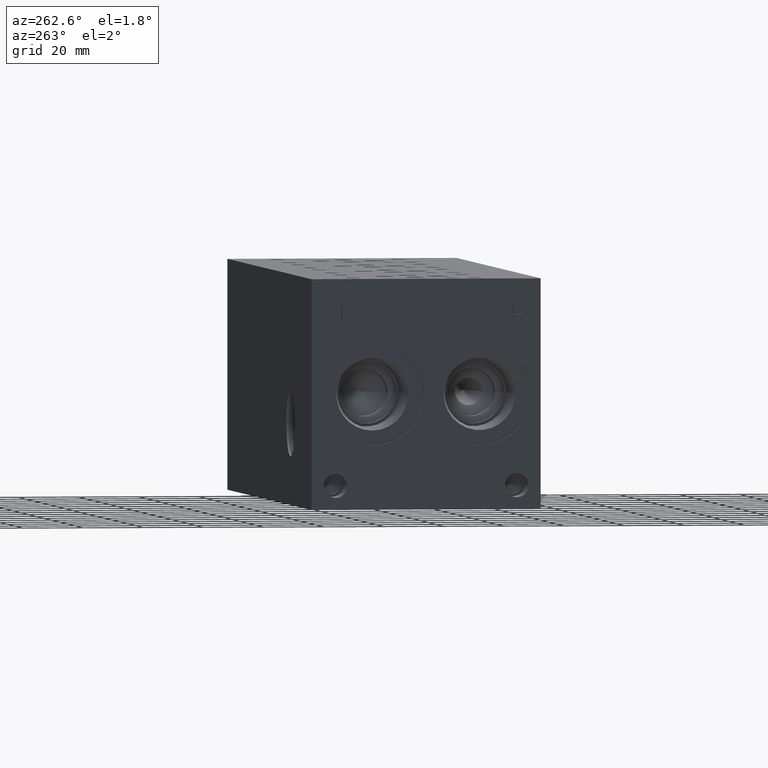
[diagram: clean part render]
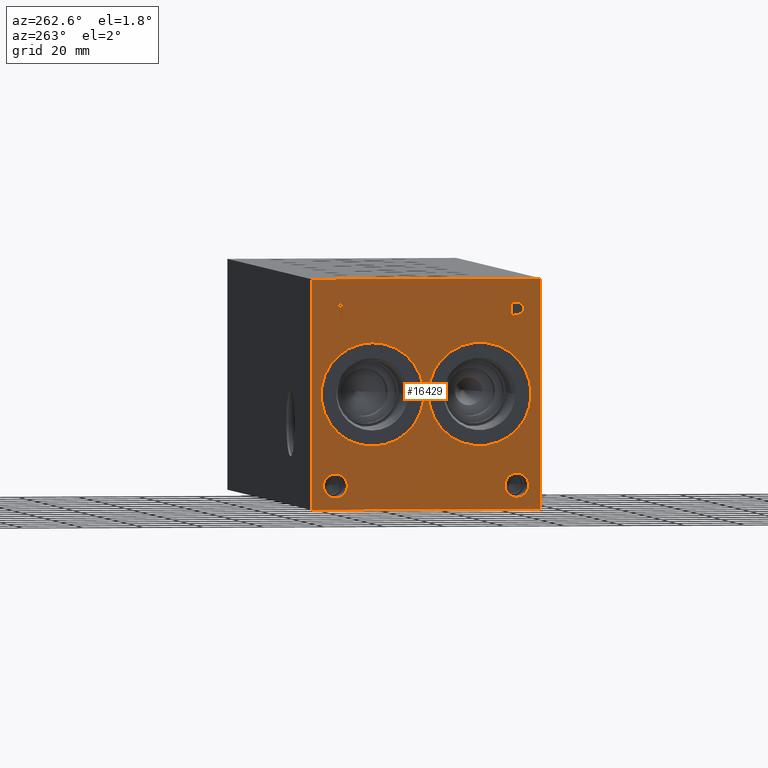
[diagram: same view with one face highlighted and labeled with its STEP entity id]
A machine part, auxiliary view. The second image highlights one B-rep face of the part: STEP entity #16429.
In plain terms, the highlighted planar face has unit normal (-1, 0, 0).
Its self-contained STEP definition (entity closure, byte-faithful):
#272=CIRCLE('',#17138,17.0688);
#273=CIRCLE('',#17139,17.0688);
#274=CIRCLE('',#17140,17.0688);
#275=CIRCLE('',#17141,17.0688);
#276=CIRCLE('',#17142,3.9624);
#277=CIRCLE('',#17143,3.9624);
#278=CIRCLE('',#17144,3.9624);
#279=CIRCLE('',#17145,3.9624);
#808=FACE_BOUND('',#3027,.T.);
#809=FACE_BOUND('',#3028,.T.);
#810=FACE_BOUND('',#3029,.T.);
#811=FACE_BOUND('',#3030,.T.);
#812=FACE_BOUND('',#3031,.T.);
#813=FACE_BOUND('',#3032,.T.);
#1300=B_SPLINE_CURVE_WITH_KNOTS('',2,(#27455,#27456,#27457,#27458),
 .UNSPECIFIED.,.F.,.F.,(3,1,3),(0.,1.,2.),.UNSPECIFIED.);
#1302=B_SPLINE_CURVE_WITH_KNOTS('',2,(#27476,#27477,#27478,#27479),
 .UNSPECIFIED.,.F.,.F.,(3,1,3),(0.,1.,2.),.UNSPECIFIED.);
#1304=B_SPLINE_CURVE_WITH_KNOTS('',2,(#27525,#27526,#27527,#27528),
 .UNSPECIFIED.,.F.,.F.,(3,1,3),(0.,1.,2.),.UNSPECIFIED.);
#1306=B_SPLINE_CURVE_WITH_KNOTS('',2,(#27543,#27544,#27545,#27546),
 .UNSPECIFIED.,.F.,.F.,(3,1,3),(0.,1.,2.),.UNSPECIFIED.);
#2087=FACE_OUTER_BOUND('',#3026,.T.);
#3026=EDGE_LOOP('',(#13336,#13337,#13338,#13339));
#3027=EDGE_LOOP('',(#13340,#13341));
#3028=EDGE_LOOP('',(#13342,#13343));
#3029=EDGE_LOOP('',(#13344,#13345));
#3030=EDGE_LOOP('',(#13346,#13347));
#3031=EDGE_LOOP('',(#13348,#13349,#13350,#13351,#13352,#13353,#13354,#13355));
#3032=EDGE_LOOP('',(#13356,#13357,#13358,#13359,#13360,#13361,#13362,#13363,
#13364));
#3732=LINE('',#24172,#5155);
#4561=LINE('',#27488,#5984);
#4564=LINE('',#27494,#5987);
#4567=LINE('',#27500,#5990);
#4570=LINE('',#27506,#5993);
#4573=LINE('',#27512,#5996);
#4577=LINE('',#27554,#6000);
#4578=LINE('',#27556,#6001);
#4579=LINE('',#27557,#6002);
#4580=LINE('',#27576,#6003);
#4581=LINE('',#27578,#6004);
#4582=LINE('',#27580,#6005);
#4583=LINE('',#27582,#6006);
#4584=LINE('',#27584,#6007);
#4585=LINE('',#27586,#6008);
#4586=LINE('',#27588,#6009);
#4587=LINE('',#27589,#6010);
#5155=VECTOR('',#18382,10.);
#5984=VECTOR('',#19835,10.);
#5987=VECTOR('',#19840,10.);
#5990=VECTOR('',#19845,10.);
#5993=VECTOR('',#19850,10.);
#5996=VECTOR('',#19855,10.);
#6000=VECTOR('',#19863,10.);
#6001=VECTOR('',#19864,10.);
#6002=VECTOR('',#19865,10.);
#6003=VECTOR('',#19882,10.);
#6004=VECTOR('',#19883,10.);
#6005=VECTOR('',#19884,10.);
#6006=VECTOR('',#19885,10.);
#6007=VECTOR('',#19886,10.);
#6008=VECTOR('',#19887,10.);
#6009=VECTOR('',#19888,10.);
#6010=VECTOR('',#19889,10.);
#6617=VERTEX_POINT('',#24165);
#6620=VERTEX_POINT('',#24170);
#7317=VERTEX_POINT('',#27453);
#7318=VERTEX_POINT('',#27454);
#7321=VERTEX_POINT('',#27475);
#7323=VERTEX_POINT('',#27487);
#7325=VERTEX_POINT('',#27493);
#7327=VERTEX_POINT('',#27499);
#7329=VERTEX_POINT('',#27505);
#7331=VERTEX_POINT('',#27511);
#7333=VERTEX_POINT('',#27524);
#7335=VERTEX_POINT('',#27553);
#7336=VERTEX_POINT('',#27555);
#7337=VERTEX_POINT('',#27558);
#7338=VERTEX_POINT('',#27559);
#7339=VERTEX_POINT('',#27562);
#7340=VERTEX_POINT('',#27563);
#7341=VERTEX_POINT('',#27566);
#7342=VERTEX_POINT('',#27567);
#7343=VERTEX_POINT('',#27570);
#7344=VERTEX_POINT('',#27571);
#7345=VERTEX_POINT('',#27574);
#7346=VERTEX_POINT('',#27575);
#7347=VERTEX_POINT('',#27577);
#7348=VERTEX_POINT('',#27579);
#7349=VERTEX_POINT('',#27581);
#7350=VERTEX_POINT('',#27583);
#7351=VERTEX_POINT('',#27585);
#7352=VERTEX_POINT('',#27587);
#8413=EDGE_CURVE('',#6617,#6620,#3732,.T.);
#9445=EDGE_CURVE('',#7317,#7318,#1300,.T.);
#9449=EDGE_CURVE('',#7321,#7317,#1302,.T.);
#9452=EDGE_CURVE('',#7323,#7321,#4561,.T.);
#9455=EDGE_CURVE('',#7325,#7323,#4564,.T.);
#9458=EDGE_CURVE('',#7327,#7325,#4567,.T.);
#9461=EDGE_CURVE('',#7329,#7327,#4570,.T.);
#9464=EDGE_CURVE('',#7331,#7329,#4573,.T.);
#9467=EDGE_CURVE('',#7333,#7331,#1304,.T.);
#9470=EDGE_CURVE('',#7318,#7333,#1306,.T.);
#9472=EDGE_CURVE('',#7335,#6617,#4577,.T.);
#9473=EDGE_CURVE('',#7336,#6620,#4578,.T.);
#9474=EDGE_CURVE('',#7335,#7336,#4579,.T.);
#9475=EDGE_CURVE('',#7337,#7338,#272,.T.);
#9476=EDGE_CURVE('',#7338,#7337,#273,.T.);
#9477=EDGE_CURVE('',#7339,#7340,#274,.T.);
#9478=EDGE_CURVE('',#7340,#7339,#275,.T.);
#9479=EDGE_CURVE('',#7341,#7342,#276,.T.);
#9480=EDGE_CURVE('',#7342,#7341,#277,.T.);
#9481=EDGE_CURVE('',#7343,#7344,#278,.T.);
#9482=EDGE_CURVE('',#7344,#7343,#279,.T.);
#9483=EDGE_CURVE('',#7345,#7346,#4580,.T.);
#9484=EDGE_CURVE('',#7346,#7347,#4581,.T.);
#9485=EDGE_CURVE('',#7347,#7348,#4582,.T.);
#9486=EDGE_CURVE('',#7348,#7349,#4583,.T.);
#9487=EDGE_CURVE('',#7349,#7350,#4584,.T.);
#9488=EDGE_CURVE('',#7350,#7351,#4585,.T.);
#9489=EDGE_CURVE('',#7351,#7352,#4586,.T.);
#9490=EDGE_CURVE('',#7352,#7345,#4587,.T.);
#13336=ORIENTED_EDGE('',*,*,#9472,.T.);
#13337=ORIENTED_EDGE('',*,*,#8413,.T.);
#13338=ORIENTED_EDGE('',*,*,#9473,.F.);
#13339=ORIENTED_EDGE('',*,*,#9474,.F.);
#13340=ORIENTED_EDGE('',*,*,#9475,.T.);
#13341=ORIENTED_EDGE('',*,*,#9476,.T.);
#13342=ORIENTED_EDGE('',*,*,#9477,.T.);
#13343=ORIENTED_EDGE('',*,*,#9478,.T.);
#13344=ORIENTED_EDGE('',*,*,#9479,.T.);
#13345=ORIENTED_EDGE('',*,*,#9480,.T.);
#13346=ORIENTED_EDGE('',*,*,#9481,.T.);
#13347=ORIENTED_EDGE('',*,*,#9482,.T.);
#13348=ORIENTED_EDGE('',*,*,#9483,.T.);
#13349=ORIENTED_EDGE('',*,*,#9484,.T.);
#13350=ORIENTED_EDGE('',*,*,#9485,.T.);
#13351=ORIENTED_EDGE('',*,*,#9486,.T.);
#13352=ORIENTED_EDGE('',*,*,#9487,.T.);
#13353=ORIENTED_EDGE('',*,*,#9488,.T.);
#13354=ORIENTED_EDGE('',*,*,#9489,.T.);
#13355=ORIENTED_EDGE('',*,*,#9490,.T.);
#13356=ORIENTED_EDGE('',*,*,#9445,.T.);
#13357=ORIENTED_EDGE('',*,*,#9470,.T.);
#13358=ORIENTED_EDGE('',*,*,#9467,.T.);
#13359=ORIENTED_EDGE('',*,*,#9464,.T.);
#13360=ORIENTED_EDGE('',*,*,#9461,.T.);
#13361=ORIENTED_EDGE('',*,*,#9458,.T.);
#13362=ORIENTED_EDGE('',*,*,#9455,.T.);
#13363=ORIENTED_EDGE('',*,*,#9452,.T.);
#13364=ORIENTED_EDGE('',*,*,#9449,.T.);
#15225=PLANE('',#17137);
#16429=ADVANCED_FACE('',(#2087,#808,#809,#810,#811,#812,#813),#15225,.T.);
#17137=AXIS2_PLACEMENT_3D('',#27552,#19861,#19862);
#17138=AXIS2_PLACEMENT_3D('',#27560,#19866,#19867);
#17139=AXIS2_PLACEMENT_3D('',#27561,#19868,#19869);
#17140=AXIS2_PLACEMENT_3D('',#27564,#19870,#19871);
#17141=AXIS2_PLACEMENT_3D('',#27565,#19872,#19873);
#17142=AXIS2_PLACEMENT_3D('',#27568,#19874,#19875);
#17143=AXIS2_PLACEMENT_3D('',#27569,#19876,#19877);
#17144=AXIS2_PLACEMENT_3D('',#27572,#19878,#19879);
#17145=AXIS2_PLACEMENT_3D('',#27573,#19880,#19881);
#18382=DIRECTION('',(0.,0.,1.));
#19835=DIRECTION('',(0.,-1.,-5.56775304226775E-15));
#19840=DIRECTION('',(0.,-3.14708893596576E-15,1.));
#19845=DIRECTION('',(0.,1.,0.));
#19850=DIRECTION('',(0.,2.81413604853751E-15,-1.));
#19855=DIRECTION('',(0.,1.,0.));
#19861=DIRECTION('center_axis',(-1.,0.,0.));
#19862=DIRECTION('ref_axis',(0.,-1.,0.));
#19863=DIRECTION('',(0.,-1.,0.));
#19864=DIRECTION('',(0.,-1.,0.));
#19865=DIRECTION('',(0.,0.,1.));
#19866=DIRECTION('center_axis',(1.,0.,0.));
#19867=DIRECTION('ref_axis',(0.,0.,1.));
#19868=DIRECTION('center_axis',(1.,0.,0.));
#19869=DIRECTION('ref_axis',(0.,0.,1.));
#19870=DIRECTION('center_axis',(1.,0.,0.));
#19871=DIRECTION('ref_axis',(0.,1.,0.));
#19872=DIRECTION('center_axis',(1.,0.,0.));
#19873=DIRECTION('ref_axis',(0.,1.,0.));
#19874=DIRECTION('center_axis',(1.,0.,0.));
#19875=DIRECTION('ref_axis',(0.,1.,0.));
#19876=DIRECTION('center_axis',(1.,0.,0.));
#19877=DIRECTION('ref_axis',(0.,1.,0.));
#19878=DIRECTION('center_axis',(1.,0.,0.));
#19879=DIRECTION('ref_axis',(0.,1.,0.));
#19880=DIRECTION('center_axis',(1.,0.,0.));
#19881=DIRECTION('ref_axis',(0.,1.,0.));
#19882=DIRECTION('',(0.,1.,0.));
#19883=DIRECTION('',(0.,-3.17280044688052E-15,1.));
#19884=DIRECTION('',(0.,1.,4.16909044227779E-15));
#19885=DIRECTION('',(0.,-1.18219413911165E-14,1.));
#19886=DIRECTION('',(0.,-1.,-3.47984565141734E-15));
#19887=DIRECTION('',(0.,1.18219413911165E-14,-1.));
#19888=DIRECTION('',(0.,1.,4.16909044227778E-15));
#19889=DIRECTION('',(0.,3.17280044688052E-15,-1.));
#24165=CARTESIAN_POINT('',(0.,0.,0.));
#24170=CARTESIAN_POINT('',(0.,0.,76.2));
#24172=CARTESIAN_POINT('',(0.,0.,0.));
#27453=CARTESIAN_POINT('',(0.,6.41818279764059,67.8662681439707));
#27454=CARTESIAN_POINT('',(0.,5.661740345468,66.3482373726039));
#27455=CARTESIAN_POINT('Ctrl Pts',(0.,6.41818279764059,67.8662681439707));
#27456=CARTESIAN_POINT('Ctrl Pts',(0.,6.06311797315141,67.6244123939564));
#27457=CARTESIAN_POINT('Ctrl Pts',(0.,5.66174034546799,66.8782616758269));
#27458=CARTESIAN_POINT('Ctrl Pts',(0.,5.661740345468,66.3482373726039));
#27475=CARTESIAN_POINT('',(0.,8.08029784561167,68.2624999046326));
#27476=CARTESIAN_POINT('Ctrl Pts',(0.,8.08029784561167,68.2624999046326));
#27477=CARTESIAN_POINT('Ctrl Pts',(0.,7.51425247323762,68.2624999046326));
#27478=CARTESIAN_POINT('Ctrl Pts',(0.,6.72178895191395,68.0772486918556));
#27479=CARTESIAN_POINT('Ctrl Pts',(0.,6.41818279764059,67.8662681439707));
#27487=CARTESIAN_POINT('',(0.,9.67551662230219,68.2624999046326));
#27488=CARTESIAN_POINT('',(0.,42.9377583111509,68.2624999046328));
#27493=CARTESIAN_POINT('',(0.,9.67551662230221,61.9125));
#27494=CARTESIAN_POINT('',(0.,9.67551662230231,30.9562499999999));
#27499=CARTESIAN_POINT('',(0.,8.83159443076271,61.9125));
#27500=CARTESIAN_POINT('',(0.,42.5157972153814,61.9125));
#27505=CARTESIAN_POINT('',(0.,8.83159443076271,64.2795988299279));
#27506=CARTESIAN_POINT('',(0.,8.83159443076279,32.1397994149638));
#27511=CARTESIAN_POINT('',(0.,8.11631891476276,64.2795988299279));
#27512=CARTESIAN_POINT('',(0.,42.1581594573814,64.2795988299279));
#27524=CARTESIAN_POINT('',(0.,6.21749398379889,64.9382698086904));
#27525=CARTESIAN_POINT('Ctrl Pts',(0.,6.21749398379889,64.9382698086904));
#27526=CARTESIAN_POINT('Ctrl Pts',(0.,6.54682947318016,64.6140801863307));
#27527=CARTESIAN_POINT('Ctrl Pts',(0.,7.4370644679139,64.2795988299279));
#27528=CARTESIAN_POINT('Ctrl Pts',(0.,8.11631891476276,64.2795988299279));
#27543=CARTESIAN_POINT('Ctrl Pts',(0.,5.661740345468,66.3482373726039));
#27544=CARTESIAN_POINT('Ctrl Pts',(0.,5.661740345468,65.9365680108774));
#27545=CARTESIAN_POINT('Ctrl Pts',(0.,5.95505476569819,65.1955631597695));
#27546=CARTESIAN_POINT('Ctrl Pts',(0.,6.21749398379889,64.9382698086904));
#27552=CARTESIAN_POINT('Origin',(0.,76.2,0.));
#27553=CARTESIAN_POINT('',(0.,76.2,0.));
#27554=CARTESIAN_POINT('',(0.,76.2,0.));
#27555=CARTESIAN_POINT('',(0.,76.2,76.2));
#27556=CARTESIAN_POINT('',(0.,76.2,76.2));
#27557=CARTESIAN_POINT('',(0.,76.2,0.));
#27558=CARTESIAN_POINT('',(0.,55.9562,55.1688));
#27559=CARTESIAN_POINT('',(0.,55.9562,21.0312));
#27560=CARTESIAN_POINT('Origin',(0.,55.9562,38.1));
#27561=CARTESIAN_POINT('Origin',(0.,55.9562,38.1));
#27562=CARTESIAN_POINT('',(0.,37.3126,38.1));
#27563=CARTESIAN_POINT('',(0.,3.175,38.1));
#27564=CARTESIAN_POINT('Origin',(0.,20.2438,38.1));
#27565=CARTESIAN_POINT('Origin',(0.,20.2438,38.1));
#27566=CARTESIAN_POINT('',(0.,11.8872,7.92480000000001));
#27567=CARTESIAN_POINT('',(0.,3.9624,7.92480000000001));
#27568=CARTESIAN_POINT('Origin',(0.,7.9248,7.92480000000001));
#27569=CARTESIAN_POINT('Origin',(0.,7.9248,7.92480000000001));
#27570=CARTESIAN_POINT('',(0.,72.2376,7.92480000000001));
#27571=CARTESIAN_POINT('',(0.,64.3128,7.92480000000001));
#27572=CARTESIAN_POINT('Origin',(0.,68.2752,7.92480000000001));
#27573=CARTESIAN_POINT('Origin',(0.,68.2752,7.92480000000001));
#27574=CARTESIAN_POINT('',(0.,66.087084728547,61.9125));
#27575=CARTESIAN_POINT('',(0.,66.9310069200865,61.9125));
#27576=CARTESIAN_POINT('',(0.,71.1435423642735,61.9125));
#27577=CARTESIAN_POINT('',(0.,66.9310069200865,67.5112033194816));
#27578=CARTESIAN_POINT('',(0.,66.9310069200866,30.95625));
#27579=CARTESIAN_POINT('',(0.,69.0613958670216,67.5112033194816));
#27580=CARTESIAN_POINT('',(0.,71.5655034600431,67.5112033194816));
#27581=CARTESIAN_POINT('',(0.,69.0613958670215,68.2624999046326));
#27582=CARTESIAN_POINT('',(0.,69.061395867022,33.7556016597407));
#27583=CARTESIAN_POINT('',(0.,63.9566957816119,68.2624999046326));
#27584=CARTESIAN_POINT('',(0.,72.6306979335107,68.2624999046326));
#27585=CARTESIAN_POINT('',(0.,63.9566957816119,67.5112033194816));
#27586=CARTESIAN_POINT('',(0.,63.9566957816123,34.1312499523162));
#27587=CARTESIAN_POINT('',(0.,66.087084728547,67.5112033194816));
#27588=CARTESIAN_POINT('',(0.,70.0783478908058,67.5112033194816));
#27589=CARTESIAN_POINT('',(0.,66.0870847285471,33.7556016597408));